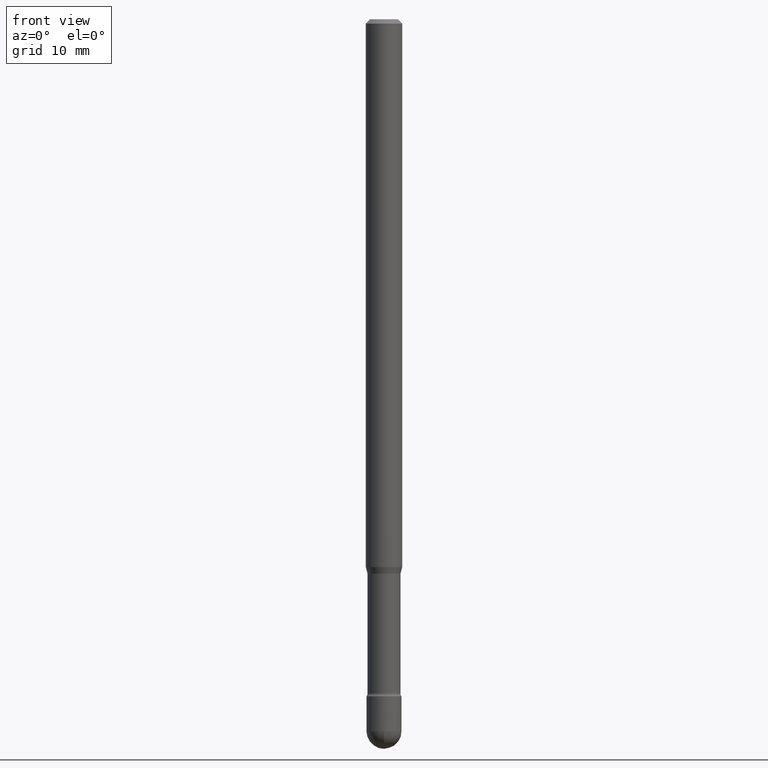
[diagram: clean part render]
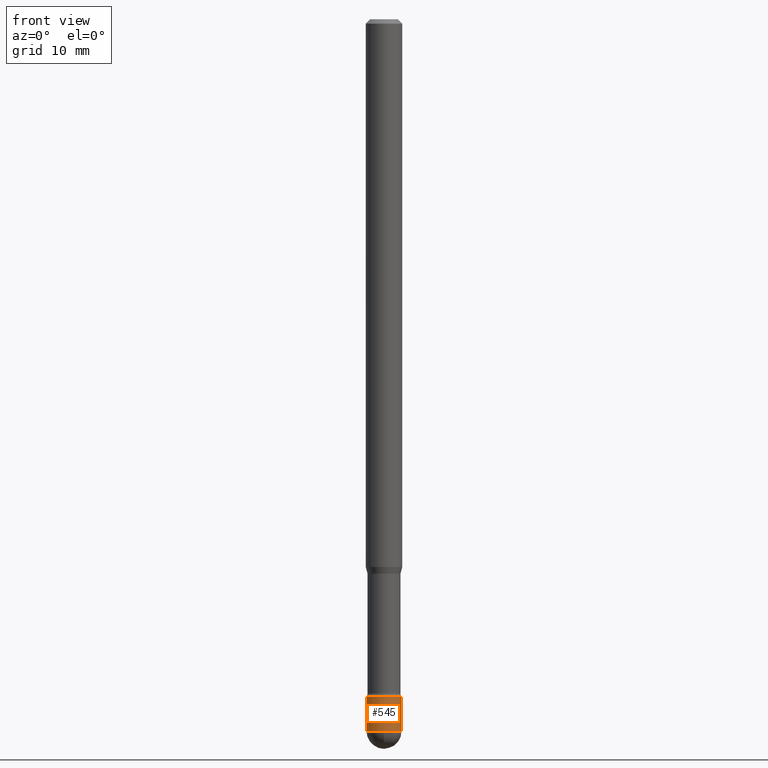
[diagram: same view with one face highlighted and labeled with its STEP entity id]
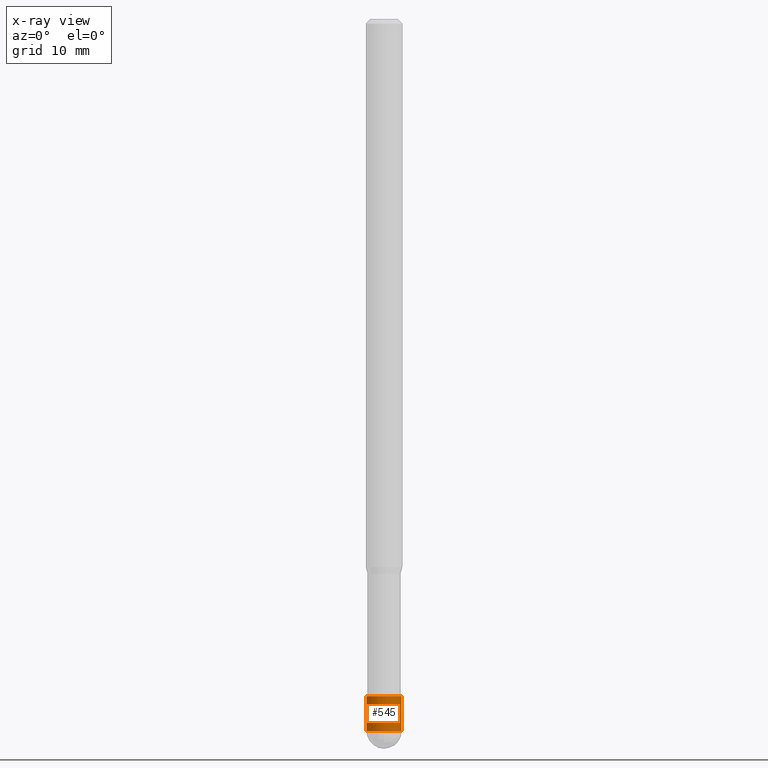
[diagram: x-ray of the same camera — body ghosted, the highlighted face saturated]
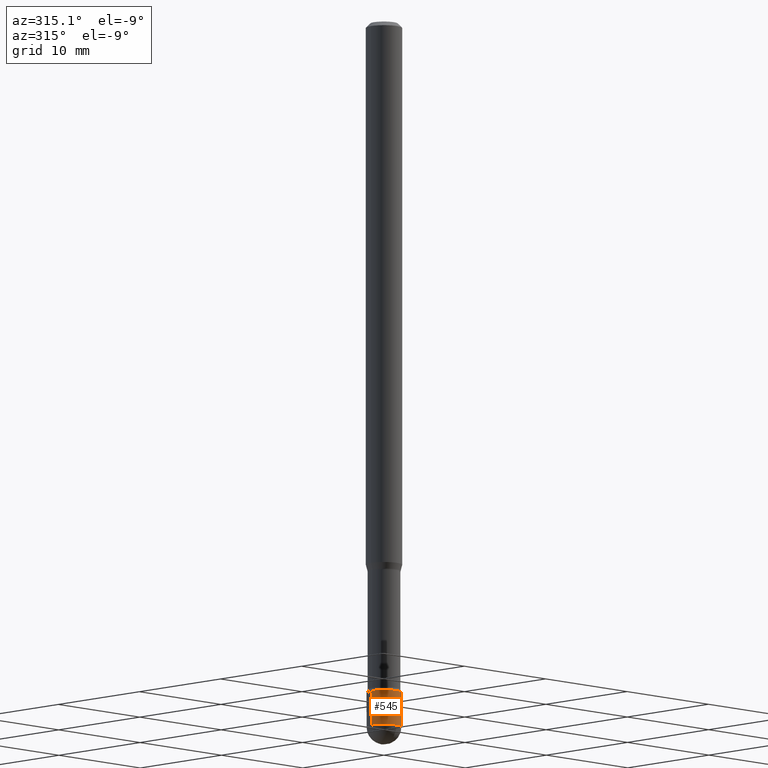
[diagram: same view with one face highlighted and labeled with its STEP entity id]
A machine part, front view. The second image highlights one B-rep face of the part: STEP entity #545.
The next image is the same camera in x-ray: the body ghosted, the highlighted face saturated — about 0% of this face is hidden behind the body in this view.
A second angle (auxiliary view) of the same face is appended — the face is thin or edge-on in the first view.
In plain terms, the highlighted cylindrical surface (edge-blend (fillet) strip) has radius 1.524 mm, axis along (-0, 0, 1).
Its self-contained STEP definition (entity closure, byte-faithful):
#21 = CARTESIAN_POINT ( 'NONE',  ( 5.966943887091733341E-29, -8.519214466777275048E-15, -2.440000000000000391 ) ) ;
#37 = CARTESIAN_POINT ( 'NONE',  ( 0.05999999999999999084, -4.189777606611759435E-16, 2.925706065477561055E-30 ) ) ;
#54 = CARTESIAN_POINT ( 'NONE',  ( -0.05999999999999999084, 4.263256414560600464E-16, -2.951361054152942712E-30 ) ) ;
#58 = AXIS2_PLACEMENT_3D ( 'NONE', #336, #202, #267 ) ;
#74 = ORIENTED_EDGE ( 'NONE', *, *, #455, .F. ) ;
#92 = CARTESIAN_POINT ( 'NONE',  ( -0.06000000000000001166, -7.883399944990627819E-15, -2.320000000000000284 ) ) ;
#97 = ORIENTED_EDGE ( 'NONE', *, *, #448, .F. ) ;
#108 = CIRCLE ( 'NONE', #431, 0.05999999999999999778 ) ;
#111 = LINE ( 'NONE', #37, #277 ) ;
#121 = DIRECTION ( 'NONE',  ( -2.445468806185136877E-29, 3.491481338843145188E-15, 1.000000000000000000 ) ) ;
#145 = EDGE_CURVE ( 'NONE', #372, #269, #209, .T. ) ;
#170 = LINE ( 'NONE', #54, #435 ) ;
#175 = CARTESIAN_POINT ( 'NONE',  ( -4.263256414560001423E-16, -0.06000000000000849792, -2.439999999999999947 ) ) ;
#180 = CYLINDRICAL_SURFACE ( 'NONE', #311, 0.05999999999999999084 ) ;
#182 = CARTESIAN_POINT ( 'NONE',  ( -0.05999999999999999084, -7.883399944990627819E-15, -2.440000000000000391 ) ) ;
#186 = ORIENTED_EDGE ( 'NONE', *, *, #345, .T. ) ;
#202 = DIRECTION ( 'NONE',  ( -2.445468806185136597E-29, 3.491481338843145583E-15, 1.000000000000000000 ) ) ;
#207 = DIRECTION ( 'NONE',  ( -2.445468806185136597E-29, 3.491481338843145583E-15, 1.000000000000000000 ) ) ;
#209 = CIRCLE ( 'NONE', #451, 0.05999999999999999084 ) ;
#264 = CARTESIAN_POINT ( 'NONE',  ( 0.000000000000000000, 0.000000000000000000, 0.000000000000000000 ) ) ;
#267 = DIRECTION ( 'NONE',  ( 1.000000000000000000, -6.982962677686269077E-15, 0.000000000000000000 ) ) ;
#269 = VERTEX_POINT ( 'NONE', #348 ) ;
#275 = ORIENTED_EDGE ( 'NONE', *, *, #309, .T. ) ;
#277 = VECTOR ( 'NONE', #374, 39.37007874015748143 ) ;
#297 = DIRECTION ( 'NONE',  ( 1.000000000000000000, -6.982962677686266711E-15, 4.876176775795935793E-29 ) ) ;
#309 = EDGE_CURVE ( 'NONE', #360, #372, #375, .T. ) ;
#311 = AXIS2_PLACEMENT_3D ( 'NONE', #264, #444, #297 ) ;
#336 = CARTESIAN_POINT ( 'NONE',  ( 5.966943887091733341E-29, -8.519214466777275048E-15, -2.440000000000000391 ) ) ;
#345 = EDGE_CURVE ( 'NONE', #269, #396, #111, .T. ) ;
#348 = CARTESIAN_POINT ( 'NONE',  ( 0.05999999999999999084, -8.728703347107863365E-15, -2.440000000000000391 ) ) ;
#352 = DIRECTION ( 'NONE',  ( -2.445468806185136597E-29, 3.491481338843145583E-15, 1.000000000000000000 ) ) ;
#360 = VERTEX_POINT ( 'NONE', #182 ) ;
#372 = VERTEX_POINT ( 'NONE', #175 ) ;
#374 = DIRECTION ( 'NONE',  ( -2.445468806185136877E-29, 3.491481338843145188E-15, 1.000000000000000000 ) ) ;
#375 = CIRCLE ( 'NONE', #58, 0.05999999999999999084 ) ;
#381 = EDGE_LOOP ( 'NONE', ( #97, #275, #483, #186, #74 ) ) ;
#389 = DIRECTION ( 'NONE',  ( 1.000000000000000000, -6.982962677686269077E-15, 0.000000000000000000 ) ) ;
#396 = VERTEX_POINT ( 'NONE', #526 ) ;
#431 = AXIS2_PLACEMENT_3D ( 'NONE', #480, #352, #531 ) ;
#435 = VECTOR ( 'NONE', #121, 39.37007874015748143 ) ;
#444 = DIRECTION ( 'NONE',  ( -2.445468806185136597E-29, 3.491481338843145583E-15, 1.000000000000000000 ) ) ;
#448 = EDGE_CURVE ( 'NONE', #360, #462, #170, .T. ) ;
#451 = AXIS2_PLACEMENT_3D ( 'NONE', #21, #207, #389 ) ;
#455 = EDGE_CURVE ( 'NONE', #462, #396, #108, .T. ) ;
#462 = VERTEX_POINT ( 'NONE', #92 ) ;
#468 = FACE_OUTER_BOUND ( 'NONE', #381, .T. ) ;
#480 = CARTESIAN_POINT ( 'NONE',  ( 5.673487630349517039E-29, -8.100236706116099992E-15, -2.320000000000000284 ) ) ;
#483 = ORIENTED_EDGE ( 'NONE', *, *, #145, .T. ) ;
#526 = CARTESIAN_POINT ( 'NONE',  ( 0.05999999999999999778, -8.519214466777275048E-15, -2.320000000000000284 ) ) ;
#531 = DIRECTION ( 'NONE',  ( 1.000000000000000000, -6.982962677686268288E-15, 0.000000000000000000 ) ) ;
#545 = ADVANCED_FACE ( 'NONE', ( #468 ), #180, .T. ) ;